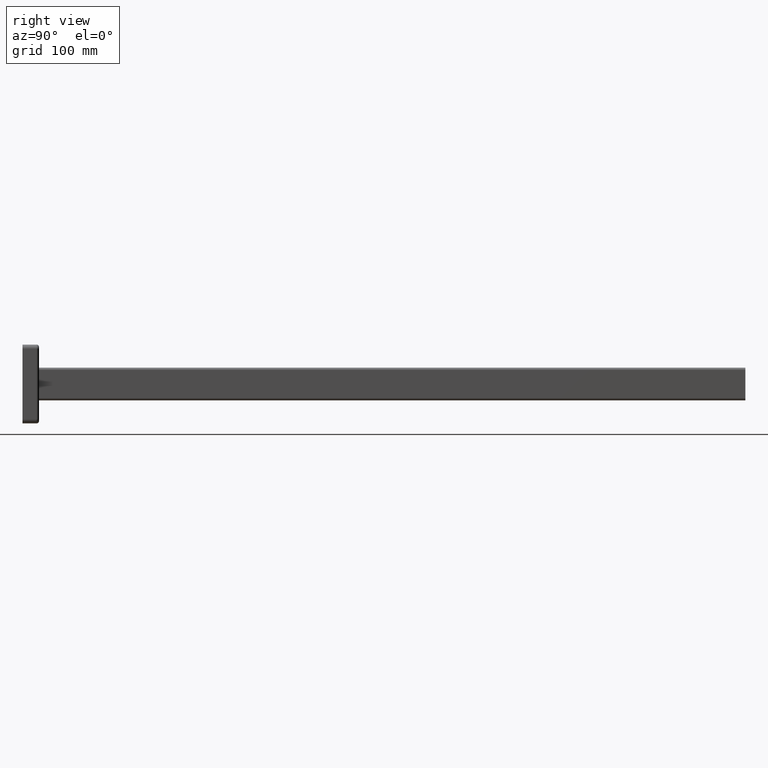
[diagram: clean part render]
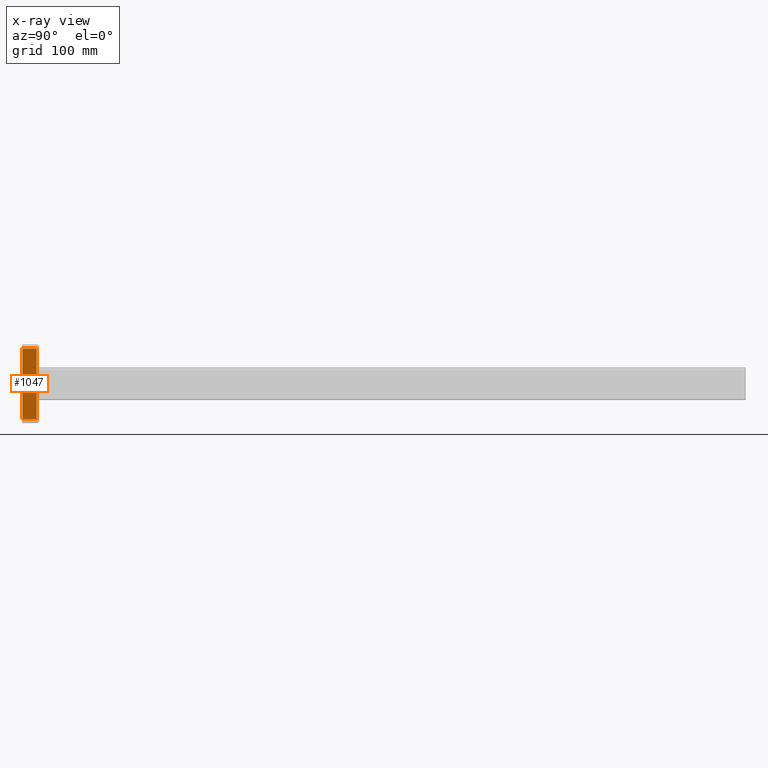
[diagram: x-ray — body ghosted, one internal face saturated and labeled with its STEP entity id]
A machine part, right view, then the same camera in x-ray: the body is ghosted and one INTERNAL B-rep face — a face not visible from any outside direction — is saturated and labeled: STEP entity #1047.
In plain terms, the highlighted planar face has unit normal (-1, 0, 0).
Its self-contained STEP definition (entity closure, byte-faithful):
#169 = ORIENTED_EDGE ( 'NONE', *, *, #587, .F. ) ;
#233 = ORIENTED_EDGE ( 'NONE', *, *, #3369, .F. ) ;
#476 = EDGE_LOOP ( 'NONE', ( #1490, #233, #1561, #169 ) ) ;
#574 = CARTESIAN_POINT ( 'NONE',  ( 46.99999999999998600, 43.00000000000000000, 20.00000000000000000 ) ) ;
#587 = EDGE_CURVE ( 'NONE', #3932, #2930, #3738, .T. ) ;
#719 = DIRECTION ( 'NONE',  ( 1.445602896647339200E-016, -1.000000000000000000, 0.0000000000000000000 ) ) ;
#1034 = VECTOR ( 'NONE', #3290, 1000.000000000000000 ) ;
#1044 = CARTESIAN_POINT ( 'NONE',  ( 46.99999999999998600, 47.99999999999999300, 20.00000000000000000 ) ) ;
#1047 = ADVANCED_FACE ( 'NONE', ( #3303 ), #2203, .T. ) ;
#1129 = AXIS2_PLACEMENT_3D ( 'NONE', #1044, #1947, #719 ) ;
#1322 = VERTEX_POINT ( 'NONE', #2882 ) ;
#1371 = DIRECTION ( 'NONE',  ( 1.445602896647339200E-016, -1.000000000000000000, 0.0000000000000000000 ) ) ;
#1490 = ORIENTED_EDGE ( 'NONE', *, *, #3167, .F. ) ;
#1561 = ORIENTED_EDGE ( 'NONE', *, *, #2113, .F. ) ;
#1635 = CARTESIAN_POINT ( 'NONE',  ( 47.00000000000000000, -43.00000000000000000, 17.00000000000000000 ) ) ;
#1699 = VECTOR ( 'NONE', #2639, 1000.000000000000000 ) ;
#1938 = LINE ( 'NONE', #574, #1034 ) ;
#1947 = DIRECTION ( 'NONE',  ( -1.000000000000000000, -1.445602896647339200E-016, 0.0000000000000000000 ) ) ;
#1989 = CARTESIAN_POINT ( 'NONE',  ( 46.99999999999998600, 47.99999999999999300, 17.00000000000000000 ) ) ;
#2042 = LINE ( 'NONE', #2336, #1699 ) ;
#2058 = CARTESIAN_POINT ( 'NONE',  ( 47.00000000000000000, -43.00000000000000000, 20.00000000000000000 ) ) ;
#2113 = EDGE_CURVE ( 'NONE', #2930, #1322, #2042, .T. ) ;
#2203 = PLANE ( 'NONE',  #1129 ) ;
#2327 = CARTESIAN_POINT ( 'NONE',  ( 47.00000000000000000, -43.00000000000000000, 0.0000000000000000000 ) ) ;
#2336 = CARTESIAN_POINT ( 'NONE',  ( 46.99999999999998600, 47.99999999999999300, 0.0000000000000000000 ) ) ;
#2639 = DIRECTION ( 'NONE',  ( -1.445602896647339200E-016, 1.000000000000000000, 0.0000000000000000000 ) ) ;
#2664 = VECTOR ( 'NONE', #1371, 1000.000000000000000 ) ;
#2882 = CARTESIAN_POINT ( 'NONE',  ( 46.99999999999998600, 43.00000000000000000, 0.0000000000000000000 ) ) ;
#2930 = VERTEX_POINT ( 'NONE', #2327 ) ;
#2950 = LINE ( 'NONE', #1989, #2664 ) ;
#2984 = VERTEX_POINT ( 'NONE', #3597 ) ;
#3167 = EDGE_CURVE ( 'NONE', #2984, #3932, #2950, .T. ) ;
#3290 = DIRECTION ( 'NONE',  ( 0.0000000000000000000, 0.0000000000000000000, 1.000000000000000000 ) ) ;
#3303 = FACE_OUTER_BOUND ( 'NONE', #476, .T. ) ;
#3369 = EDGE_CURVE ( 'NONE', #1322, #2984, #1938, .T. ) ;
#3394 = VECTOR ( 'NONE', #3539, 1000.000000000000000 ) ;
#3539 = DIRECTION ( 'NONE',  ( -0.0000000000000000000, -0.0000000000000000000, -1.000000000000000000 ) ) ;
#3597 = CARTESIAN_POINT ( 'NONE',  ( 46.99999999999998600, 42.99999999999999300, 17.00000000000000000 ) ) ;
#3738 = LINE ( 'NONE', #2058, #3394 ) ;
#3932 = VERTEX_POINT ( 'NONE', #1635 ) ;